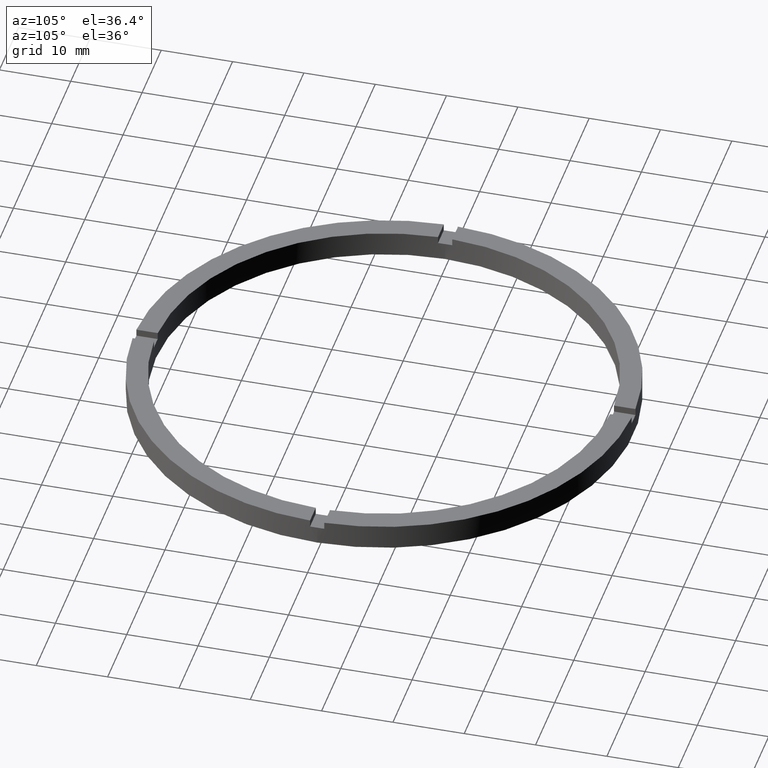
[diagram: clean part render]
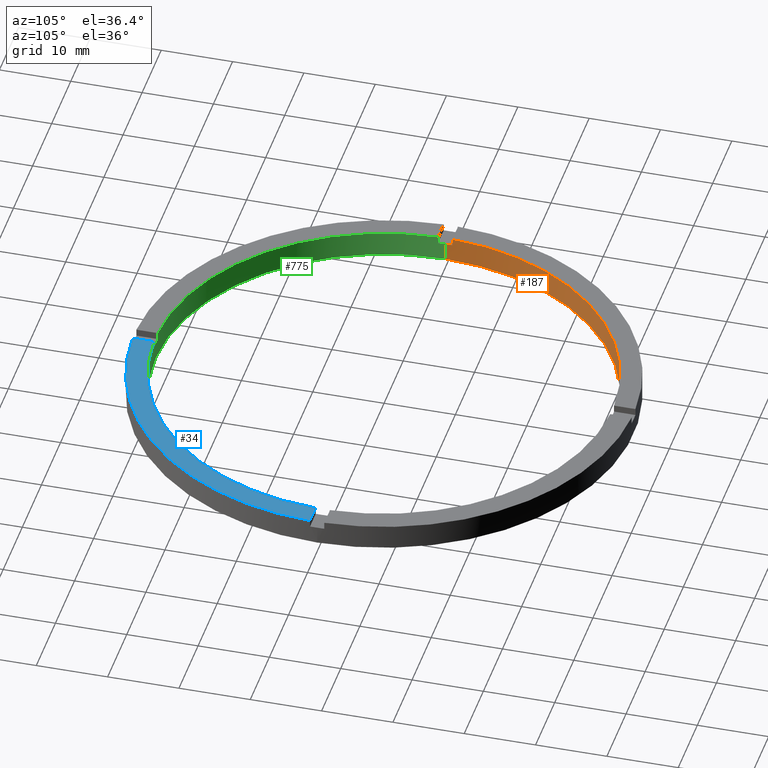
[diagram: same view with three faces highlighted in distinct colors, each labeled with its STEP entity id]
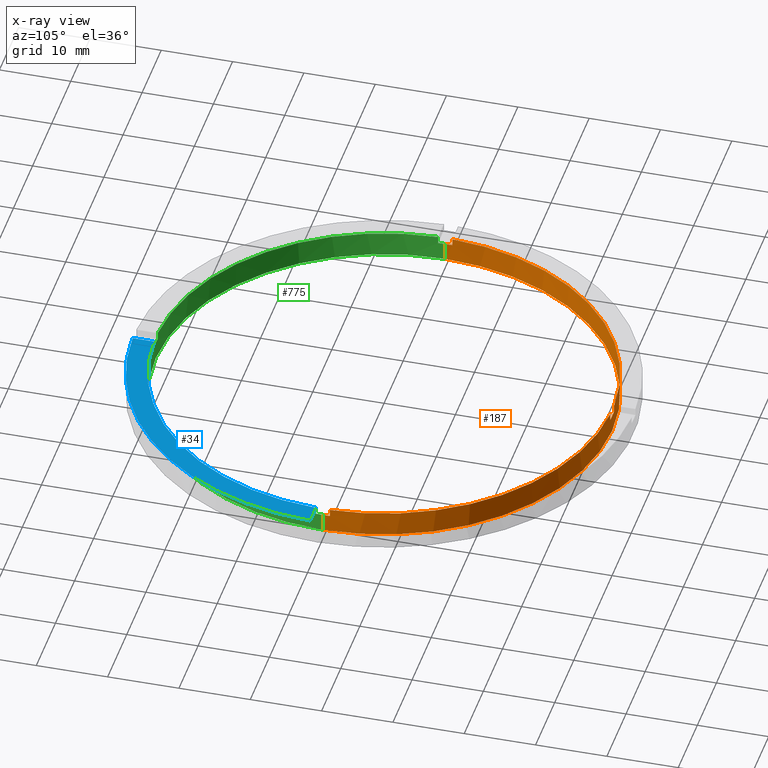
[diagram: x-ray of the same camera — body ghosted, the three highlighted faces saturated]
A machine part, auxiliary view with three faces highlighted in distinct colors.
The next image is the same camera in x-ray (body ghosted, the three faces saturated) — at least one of them is partly hidden behind the body in this view.
Their STEP definitions:

[orange] entity #187 — the highlighted cylindrical surface (partial cylindrical patch) has radius 32 mm, axis along (-0, -0, -1).
#3 = CARTESIAN_POINT ( 'NONE',  ( -1.000000000000024869, 31.98437118343894880, 3.500000000000000000 ) ) ;
#13 = CARTESIAN_POINT ( 'NONE',  ( 0.000000000000000000, 0.000000000000000000, 2.500000000000000000 ) ) ;
#14 = CARTESIAN_POINT ( 'NONE',  ( 0.000000000000000000, 0.000000000000000000, 3.500000000000000000 ) ) ;
#15 = EDGE_CURVE ( 'NONE', #658, #338, #350, .T. ) ;
#25 = DIRECTION ( 'NONE',  ( 0.000000000000000000, 0.000000000000000000, 1.000000000000000000 ) ) ;
#28 = CARTESIAN_POINT ( 'NONE',  ( 32.00000000000000000, 3.918869757271530263E-15, 3.500000000000000000 ) ) ;
#33 = EDGE_CURVE ( 'NONE', #624, #428, #355, .T. ) ;
#40 = CARTESIAN_POINT ( 'NONE',  ( -31.98437118343894880, 0.9999999999999737987, 3.500000000000000000 ) ) ;
#41 = DIRECTION ( 'NONE',  ( 0.000000000000000000, 0.000000000000000000, 1.000000000000000000 ) ) ;
#53 = AXIS2_PLACEMENT_3D ( 'NONE', #716, #25, #166 ) ;
#65 = VERTEX_POINT ( 'NONE', #288 ) ;
#70 = CARTESIAN_POINT ( 'NONE',  ( 0.000000000000000000, 0.000000000000000000, 3.500000000000000000 ) ) ;
#79 = ORIENTED_EDGE ( 'NONE', *, *, #252, .T. ) ;
#105 = VERTEX_POINT ( 'NONE', #290 ) ;
#106 = ORIENTED_EDGE ( 'NONE', *, *, #522, .F. ) ;
#119 = VERTEX_POINT ( 'NONE', #525 ) ;
#120 = ORIENTED_EDGE ( 'NONE', *, *, #212, .F. ) ;
#123 = ORIENTED_EDGE ( 'NONE', *, *, #568, .T. ) ;
#131 = VECTOR ( 'NONE', #267, 1000.000000000000000 ) ;
#153 = VERTEX_POINT ( 'NONE', #173 ) ;
#154 = DIRECTION ( 'NONE',  ( 1.000000000000000000, 0.000000000000000000, 0.000000000000000000 ) ) ;
#155 = ORIENTED_EDGE ( 'NONE', *, *, #33, .T. ) ;
#158 = CARTESIAN_POINT ( 'NONE',  ( -32.00000000000000000, 0.000000000000000000, 3.500000000000000000 ) ) ;
#166 = DIRECTION ( 'NONE',  ( 1.000000000000000000, 0.000000000000000000, 0.000000000000000000 ) ) ;
#173 = CARTESIAN_POINT ( 'NONE',  ( -32.00000000000000000, 0.000000000000000000, 2.500000000000000000 ) ) ;
#187 = ADVANCED_FACE ( 'NONE', ( #657 ), #647, .F. ) ;
#191 = CARTESIAN_POINT ( 'NONE',  ( 32.00000000000000000, 3.918869757271530263E-15, 0.000000000000000000 ) ) ;
#192 = VECTOR ( 'NONE', #302, 1000.000000000000000 ) ;
#193 = LINE ( 'NONE', #28, #192 ) ;
#200 = CARTESIAN_POINT ( 'NONE',  ( -31.98437118343894880, 0.9999999999999737987, 3.500000000000000000 ) ) ;
#204 = CIRCLE ( 'NONE', #552, 32.00000000000000000 ) ;
#212 = EDGE_CURVE ( 'NONE', #354, #428, #660, .T. ) ;
#214 = CARTESIAN_POINT ( 'NONE',  ( 0.9999999999999751310, 31.98437118343894880, 3.500000000000000000 ) ) ;
#243 = CARTESIAN_POINT ( 'NONE',  ( 0.9999999999999751310, 31.98437118343894880, 2.500000000000000000 ) ) ;
#249 = CARTESIAN_POINT ( 'NONE',  ( 32.00000000000000000, 3.918869757271530263E-15, 2.500000000000000000 ) ) ;
#252 = EDGE_CURVE ( 'NONE', #153, #338, #385, .T. ) ;
#259 = DIRECTION ( 'NONE',  ( 0.000000000000000000, 0.000000000000000000, 1.000000000000000000 ) ) ;
#267 = DIRECTION ( 'NONE',  ( -0.000000000000000000, -0.000000000000000000, -1.000000000000000000 ) ) ;
#268 = DIRECTION ( 'NONE',  ( 0.000000000000000000, 0.000000000000000000, 1.000000000000000000 ) ) ;
#284 = CARTESIAN_POINT ( 'NONE',  ( 0.000000000000000000, 0.000000000000000000, 2.500000000000000000 ) ) ;
#286 = EDGE_CURVE ( 'NONE', #624, #119, #303, .T. ) ;
#288 = CARTESIAN_POINT ( 'NONE',  ( 31.98437118343895591, 0.9999999999998421263, 3.500000000000000000 ) ) ;
#290 = CARTESIAN_POINT ( 'NONE',  ( -31.98437118343894880, 0.9999999999999737987, 2.500000000000000000 ) ) ;
#298 = CARTESIAN_POINT ( 'NONE',  ( 31.98437118343895591, 0.9999999999998421263, 2.500000000000000000 ) ) ;
#302 = DIRECTION ( 'NONE',  ( -0.000000000000000000, -0.000000000000000000, -1.000000000000000000 ) ) ;
#303 = LINE ( 'NONE', #214, #725 ) ;
#305 = EDGE_CURVE ( 'NONE', #105, #153, #466, .T. ) ;
#332 = VERTEX_POINT ( 'NONE', #40 ) ;
#337 = ORIENTED_EDGE ( 'NONE', *, *, #286, .F. ) ;
#338 = VERTEX_POINT ( 'NONE', #546 ) ;
#350 = CIRCLE ( 'NONE', #782, 32.00000000000000000 ) ;
#354 = VERTEX_POINT ( 'NONE', #3 ) ;
#355 = CIRCLE ( 'NONE', #426, 32.00000000000000000 ) ;
#359 = ORIENTED_EDGE ( 'NONE', *, *, #754, .F. ) ;
#379 = AXIS2_PLACEMENT_3D ( 'NONE', #70, #532, #523 ) ;
#385 = LINE ( 'NONE', #158, #131 ) ;
#421 = ORIENTED_EDGE ( 'NONE', *, *, #547, .T. ) ;
#426 = AXIS2_PLACEMENT_3D ( 'NONE', #13, #597, #700 ) ;
#428 = VERTEX_POINT ( 'NONE', #756 ) ;
#444 = EDGE_CURVE ( 'NONE', #690, #658, #193, .T. ) ;
#448 = CIRCLE ( 'NONE', #693, 32.00000000000000000 ) ;
#461 = DIRECTION ( 'NONE',  ( 0.000000000000000000, 0.000000000000000000, 1.000000000000000000 ) ) ;
#462 = LINE ( 'NONE', #776, #723 ) ;
#465 = DIRECTION ( 'NONE',  ( 1.000000000000000000, 0.000000000000000000, 0.000000000000000000 ) ) ;
#466 = CIRCLE ( 'NONE', #717, 32.00000000000000000 ) ;
#481 = VECTOR ( 'NONE', #41, 1000.000000000000000 ) ;
#508 = DIRECTION ( 'NONE',  ( 0.000000000000000000, 0.000000000000000000, 1.000000000000000000 ) ) ;
#511 = DIRECTION ( 'NONE',  ( 1.000000000000000000, 0.000000000000000000, 0.000000000000000000 ) ) ;
#518 = CARTESIAN_POINT ( 'NONE',  ( 0.000000000000000000, 0.000000000000000000, 3.500000000000000000 ) ) ;
#522 = EDGE_CURVE ( 'NONE', #65, #571, #462, .T. ) ;
#523 = DIRECTION ( 'NONE',  ( -1.000000000000000000, 0.000000000000000000, 0.000000000000000000 ) ) ;
#524 = DIRECTION ( 'NONE',  ( -0.000000000000000000, -0.000000000000000000, -1.000000000000000000 ) ) ;
#525 = CARTESIAN_POINT ( 'NONE',  ( 0.9999999999999751310, 31.98437118343894880, 3.500000000000000000 ) ) ;
#532 = DIRECTION ( 'NONE',  ( -0.000000000000000000, -0.000000000000000000, -1.000000000000000000 ) ) ;
#543 = EDGE_CURVE ( 'NONE', #690, #571, #704, .T. ) ;
#546 = CARTESIAN_POINT ( 'NONE',  ( -32.00000000000000000, 0.000000000000000000, 0.000000000000000000 ) ) ;
#547 = EDGE_CURVE ( 'NONE', #354, #332, #204, .T. ) ;
#550 = CARTESIAN_POINT ( 'NONE',  ( 0.000000000000000000, 0.000000000000000000, 0.000000000000000000 ) ) ;
#552 = AXIS2_PLACEMENT_3D ( 'NONE', #14, #461, #154 ) ;
#568 = EDGE_CURVE ( 'NONE', #65, #119, #448, .T. ) ;
#571 = VERTEX_POINT ( 'NONE', #298 ) ;
#588 = DIRECTION ( 'NONE',  ( 0.000000000000000000, 0.000000000000000000, 1.000000000000000000 ) ) ;
#590 = EDGE_LOOP ( 'NONE', ( #617, #607, #106, #123, #337, #155, #120, #421, #359, #670, #79, #600 ) ) ;
#597 = DIRECTION ( 'NONE',  ( 0.000000000000000000, -0.000000000000000000, 1.000000000000000000 ) ) ;
#600 = ORIENTED_EDGE ( 'NONE', *, *, #15, .F. ) ;
#606 = DIRECTION ( 'NONE',  ( -0.000000000000000000, -0.000000000000000000, -1.000000000000000000 ) ) ;
#607 = ORIENTED_EDGE ( 'NONE', *, *, #543, .T. ) ;
#617 = ORIENTED_EDGE ( 'NONE', *, *, #444, .F. ) ;
#624 = VERTEX_POINT ( 'NONE', #243 ) ;
#645 = CARTESIAN_POINT ( 'NONE',  ( -1.000000000000024869, 31.98437118343894880, 3.500000000000000000 ) ) ;
#647 = CYLINDRICAL_SURFACE ( 'NONE', #379, 32.00000000000000000 ) ;
#651 = VECTOR ( 'NONE', #606, 1000.000000000000000 ) ;
#657 = FACE_OUTER_BOUND ( 'NONE', #590, .T. ) ;
#658 = VERTEX_POINT ( 'NONE', #191 ) ;
#660 = LINE ( 'NONE', #645, #651 ) ;
#670 = ORIENTED_EDGE ( 'NONE', *, *, #305, .T. ) ;
#690 = VERTEX_POINT ( 'NONE', #249 ) ;
#693 = AXIS2_PLACEMENT_3D ( 'NONE', #518, #268, #763 ) ;
#700 = DIRECTION ( 'NONE',  ( 1.000000000000000000, 0.000000000000000000, 0.000000000000000000 ) ) ;
#704 = CIRCLE ( 'NONE', #53, 32.00000000000000000 ) ;
#716 = CARTESIAN_POINT ( 'NONE',  ( 0.000000000000000000, 0.000000000000000000, 2.500000000000000000 ) ) ;
#717 = AXIS2_PLACEMENT_3D ( 'NONE', #284, #508, #511 ) ;
#723 = VECTOR ( 'NONE', #524, 1000.000000000000000 ) ;
#725 = VECTOR ( 'NONE', #259, 1000.000000000000000 ) ;
#740 = LINE ( 'NONE', #200, #481 ) ;
#754 = EDGE_CURVE ( 'NONE', #105, #332, #740, .T. ) ;
#756 = CARTESIAN_POINT ( 'NONE',  ( -1.000000000000024869, 31.98437118343894880, 2.500000000000000000 ) ) ;
#763 = DIRECTION ( 'NONE',  ( 1.000000000000000000, 0.000000000000000000, 0.000000000000000000 ) ) ;
#776 = CARTESIAN_POINT ( 'NONE',  ( 31.98437118343895591, 0.9999999999998421263, 3.500000000000000000 ) ) ;
#782 = AXIS2_PLACEMENT_3D ( 'NONE', #550, #588, #465 ) ;

[blue] entity #34 — the highlighted planar face has unit normal (0, 0, 1).
#34 = ADVANCED_FACE ( 'NONE', ( #620 ), #766, .T. ) ;
#37 = DIRECTION ( 'NONE',  ( 1.000000000000000000, 0.000000000000000000, 0.000000000000000000 ) ) ;
#43 = CARTESIAN_POINT ( 'NONE',  ( 0.000000000000000000, 0.000000000000000000, 3.500000000000000000 ) ) ;
#89 = CARTESIAN_POINT ( 'NONE',  ( 0.9999999999998382405, -25.00000000000018829, 3.500000000000000000 ) ) ;
#99 = EDGE_LOOP ( 'NONE', ( #136, #395, #685, #689 ) ) ;
#100 = AXIS2_PLACEMENT_3D ( 'NONE', #535, #431, #37 ) ;
#103 = CARTESIAN_POINT ( 'NONE',  ( 31.98437118343894170, -1.000000000000157874, 3.500000000000000000 ) ) ;
#136 = ORIENTED_EDGE ( 'NONE', *, *, #596, .F. ) ;
#140 = CARTESIAN_POINT ( 'NONE',  ( 0.9999999999998391287, -31.98437118343895591, 3.500000000000000000 ) ) ;
#147 = DIRECTION ( 'NONE',  ( 1.000000000000000000, 0.000000000000000000, -0.000000000000000000 ) ) ;
#172 = VECTOR ( 'NONE', #504, 1000.000000000000000 ) ;
#175 = DIRECTION ( 'NONE',  ( -1.301042606982605074E-16, 1.000000000000000000, -0.000000000000000000 ) ) ;
#248 = DIRECTION ( 'NONE',  ( 0.000000000000000000, 0.000000000000000000, 1.000000000000000000 ) ) ;
#250 = AXIS2_PLACEMENT_3D ( 'NONE', #43, #248, #454 ) ;
#324 = EDGE_CURVE ( 'NONE', #344, #409, #721, .T. ) ;
#344 = VERTEX_POINT ( 'NONE', #140 ) ;
#360 = VERTEX_POINT ( 'NONE', #501 ) ;
#361 = CARTESIAN_POINT ( 'NONE',  ( 0.000000000000000000, 0.000000000000000000, 3.500000000000000000 ) ) ;
#384 = EDGE_CURVE ( 'NONE', #360, #422, #727, .T. ) ;
#395 = ORIENTED_EDGE ( 'NONE', *, *, #324, .F. ) ;
#409 = VERTEX_POINT ( 'NONE', #103 ) ;
#422 = VERTEX_POINT ( 'NONE', #572 ) ;
#431 = DIRECTION ( 'NONE',  ( 0.000000000000000000, 0.000000000000000000, 1.000000000000000000 ) ) ;
#433 = CARTESIAN_POINT ( 'NONE',  ( 25.00000000000000000, -1.000000000000158540, 3.500000000000000000 ) ) ;
#441 = LINE ( 'NONE', #433, #172 ) ;
#454 = DIRECTION ( 'NONE',  ( 1.000000000000000000, 0.000000000000000000, 0.000000000000000000 ) ) ;
#459 = DIRECTION ( 'NONE',  ( 0.000000000000000000, 0.000000000000000000, 1.000000000000000000 ) ) ;
#485 = LINE ( 'NONE', #89, #757 ) ;
#501 = CARTESIAN_POINT ( 'NONE',  ( 0.9999999999998395728, -34.98571136907181511, 3.500000000000000000 ) ) ;
#504 = DIRECTION ( 'NONE',  ( 1.000000000000000000, 6.505213034913025371E-17, 0.000000000000000000 ) ) ;
#535 = CARTESIAN_POINT ( 'NONE',  ( 0.000000000000000000, 0.000000000000000000, 3.500000000000000000 ) ) ;
#572 = CARTESIAN_POINT ( 'NONE',  ( 34.98571136907180090, -1.000000000000157874, 3.500000000000000000 ) ) ;
#596 = EDGE_CURVE ( 'NONE', #409, #422, #441, .T. ) ;
#612 = AXIS2_PLACEMENT_3D ( 'NONE', #361, #459, #147 ) ;
#620 = FACE_OUTER_BOUND ( 'NONE', #99, .T. ) ;
#685 = ORIENTED_EDGE ( 'NONE', *, *, #777, .F. ) ;
#689 = ORIENTED_EDGE ( 'NONE', *, *, #384, .T. ) ;
#721 = CIRCLE ( 'NONE', #250, 32.00000000000000000 ) ;
#727 = CIRCLE ( 'NONE', #100, 35.00000000000000711 ) ;
#757 = VECTOR ( 'NONE', #175, 1000.000000000000000 ) ;
#766 = PLANE ( 'NONE',  #612 ) ;
#777 = EDGE_CURVE ( 'NONE', #360, #344, #485, .T. ) ;

[green] entity #775 — the highlighted cylindrical surface (partial cylindrical patch) has radius 32 mm, axis along (-0, -0, -1).
#21 = EDGE_CURVE ( 'NONE', #344, #601, #122, .T. ) ;
#22 = DIRECTION ( 'NONE',  ( 0.000000000000000000, 0.000000000000000000, 1.000000000000000000 ) ) ;
#24 = DIRECTION ( 'NONE',  ( -0.000000000000000000, 0.000000000000000000, 1.000000000000000000 ) ) ;
#28 = CARTESIAN_POINT ( 'NONE',  ( 32.00000000000000000, 3.918869757271530263E-15, 3.500000000000000000 ) ) ;
#35 = CARTESIAN_POINT ( 'NONE',  ( -1.000000000000160982, -31.98437118343894170, 3.500000000000000000 ) ) ;
#43 = CARTESIAN_POINT ( 'NONE',  ( 0.000000000000000000, 0.000000000000000000, 3.500000000000000000 ) ) ;
#49 = EDGE_CURVE ( 'NONE', #153, #156, #364, .T. ) ;
#60 = DIRECTION ( 'NONE',  ( 0.000000000000000000, 0.000000000000000000, 1.000000000000000000 ) ) ;
#81 = EDGE_LOOP ( 'NONE', ( #683, #627, #336, #376, #688, #674, #634, #639, #371, #362, #383, #586 ) ) ;
#103 = CARTESIAN_POINT ( 'NONE',  ( 31.98437118343894170, -1.000000000000157874, 3.500000000000000000 ) ) ;
#112 = VERTEX_POINT ( 'NONE', #35 ) ;
#115 = DIRECTION ( 'NONE',  ( 0.000000000000000000, 0.000000000000000000, 1.000000000000000000 ) ) ;
#122 = LINE ( 'NONE', #515, #615 ) ;
#131 = VECTOR ( 'NONE', #267, 1000.000000000000000 ) ;
#140 = CARTESIAN_POINT ( 'NONE',  ( 0.9999999999998391287, -31.98437118343895591, 3.500000000000000000 ) ) ;
#153 = VERTEX_POINT ( 'NONE', #173 ) ;
#156 = VERTEX_POINT ( 'NONE', #492 ) ;
#158 = CARTESIAN_POINT ( 'NONE',  ( -32.00000000000000000, 0.000000000000000000, 3.500000000000000000 ) ) ;
#173 = CARTESIAN_POINT ( 'NONE',  ( -32.00000000000000000, 0.000000000000000000, 2.500000000000000000 ) ) ;
#176 = VECTOR ( 'NONE', #22, 1000.000000000000000 ) ;
#183 = AXIS2_PLACEMENT_3D ( 'NONE', #442, #115, #278 ) ;
#184 = EDGE_CURVE ( 'NONE', #315, #601, #396, .T. ) ;
#191 = CARTESIAN_POINT ( 'NONE',  ( 32.00000000000000000, 3.918869757271530263E-15, 0.000000000000000000 ) ) ;
#192 = VECTOR ( 'NONE', #302, 1000.000000000000000 ) ;
#193 = LINE ( 'NONE', #28, #192 ) ;
#196 = CARTESIAN_POINT ( 'NONE',  ( 31.98437118343894170, -1.000000000000157874, 2.500000000000000000 ) ) ;
#211 = VECTOR ( 'NONE', #650, 1000.000000000000000 ) ;
#216 = CYLINDRICAL_SURFACE ( 'NONE', #519, 32.00000000000000000 ) ;
#233 = DIRECTION ( 'NONE',  ( 1.000000000000000000, 0.000000000000000000, 0.000000000000000000 ) ) ;
#245 = CARTESIAN_POINT ( 'NONE',  ( 0.000000000000000000, 0.000000000000000000, 2.500000000000000000 ) ) ;
#247 = CARTESIAN_POINT ( 'NONE',  ( -31.98437118343894880, -1.000000000000026201, 3.500000000000000000 ) ) ;
#248 = DIRECTION ( 'NONE',  ( 0.000000000000000000, 0.000000000000000000, 1.000000000000000000 ) ) ;
#249 = CARTESIAN_POINT ( 'NONE',  ( 32.00000000000000000, 3.918869757271530263E-15, 2.500000000000000000 ) ) ;
#250 = AXIS2_PLACEMENT_3D ( 'NONE', #43, #248, #454 ) ;
#252 = EDGE_CURVE ( 'NONE', #153, #338, #385, .T. ) ;
#254 = DIRECTION ( 'NONE',  ( 1.000000000000000000, 0.000000000000000000, 0.000000000000000000 ) ) ;
#267 = DIRECTION ( 'NONE',  ( -0.000000000000000000, -0.000000000000000000, -1.000000000000000000 ) ) ;
#278 = DIRECTION ( 'NONE',  ( 1.000000000000000000, 0.000000000000000000, 0.000000000000000000 ) ) ;
#282 = CARTESIAN_POINT ( 'NONE',  ( 0.000000000000000000, 0.000000000000000000, 0.000000000000000000 ) ) ;
#294 = DIRECTION ( 'NONE',  ( -0.000000000000000000, -0.000000000000000000, -1.000000000000000000 ) ) ;
#302 = DIRECTION ( 'NONE',  ( -0.000000000000000000, -0.000000000000000000, -1.000000000000000000 ) ) ;
#313 = CARTESIAN_POINT ( 'NONE',  ( 0.000000000000000000, 0.000000000000000000, 3.500000000000000000 ) ) ;
#315 = VERTEX_POINT ( 'NONE', #537 ) ;
#322 = AXIS2_PLACEMENT_3D ( 'NONE', #245, #24, #380 ) ;
#324 = EDGE_CURVE ( 'NONE', #344, #409, #721, .T. ) ;
#336 = ORIENTED_EDGE ( 'NONE', *, *, #415, .F. ) ;
#338 = VERTEX_POINT ( 'NONE', #546 ) ;
#344 = VERTEX_POINT ( 'NONE', #140 ) ;
#362 = ORIENTED_EDGE ( 'NONE', *, *, #21, .F. ) ;
#364 = CIRCLE ( 'NONE', #487, 32.00000000000000000 ) ;
#366 = VERTEX_POINT ( 'NONE', #196 ) ;
#371 = ORIENTED_EDGE ( 'NONE', *, *, #184, .T. ) ;
#373 = CARTESIAN_POINT ( 'NONE',  ( 0.000000000000000000, 0.000000000000000000, 2.500000000000000000 ) ) ;
#376 = ORIENTED_EDGE ( 'NONE', *, *, #252, .F. ) ;
#380 = DIRECTION ( 'NONE',  ( 1.000000000000000000, 0.000000000000000000, 0.000000000000000000 ) ) ;
#383 = ORIENTED_EDGE ( 'NONE', *, *, #324, .T. ) ;
#385 = LINE ( 'NONE', #158, #131 ) ;
#396 = CIRCLE ( 'NONE', #322, 32.00000000000000000 ) ;
#405 = CARTESIAN_POINT ( 'NONE',  ( -31.98437118343894880, -1.000000000000026201, 3.500000000000000000 ) ) ;
#409 = VERTEX_POINT ( 'NONE', #103 ) ;
#412 = DIRECTION ( 'NONE',  ( -1.000000000000000000, 0.000000000000000000, 0.000000000000000000 ) ) ;
#415 = EDGE_CURVE ( 'NONE', #338, #658, #464, .T. ) ;
#425 = CARTESIAN_POINT ( 'NONE',  ( 0.9999999999998391287, -31.98437118343895591, 2.500000000000000000 ) ) ;
#436 = DIRECTION ( 'NONE',  ( 0.000000000000000000, 0.000000000000000000, 1.000000000000000000 ) ) ;
#440 = AXIS2_PLACEMENT_3D ( 'NONE', #282, #503, #254 ) ;
#442 = CARTESIAN_POINT ( 'NONE',  ( 0.000000000000000000, 0.000000000000000000, 3.500000000000000000 ) ) ;
#443 = VECTOR ( 'NONE', #494, 1000.000000000000000 ) ;
#444 = EDGE_CURVE ( 'NONE', #690, #658, #193, .T. ) ;
#454 = DIRECTION ( 'NONE',  ( 1.000000000000000000, 0.000000000000000000, 0.000000000000000000 ) ) ;
#460 = CIRCLE ( 'NONE', #183, 32.00000000000000000 ) ;
#464 = CIRCLE ( 'NONE', #440, 32.00000000000000000 ) ;
#477 = FACE_OUTER_BOUND ( 'NONE', #81, .T. ) ;
#487 = AXIS2_PLACEMENT_3D ( 'NONE', #540, #436, #507 ) ;
#492 = CARTESIAN_POINT ( 'NONE',  ( -31.98437118343894880, -1.000000000000026201, 2.500000000000000000 ) ) ;
#494 = DIRECTION ( 'NONE',  ( -0.000000000000000000, -0.000000000000000000, -1.000000000000000000 ) ) ;
#496 = AXIS2_PLACEMENT_3D ( 'NONE', #373, #60, #233 ) ;
#503 = DIRECTION ( 'NONE',  ( 0.000000000000000000, 0.000000000000000000, 1.000000000000000000 ) ) ;
#506 = EDGE_CURVE ( 'NONE', #649, #156, #701, .T. ) ;
#507 = DIRECTION ( 'NONE',  ( 1.000000000000000000, 0.000000000000000000, 0.000000000000000000 ) ) ;
#515 = CARTESIAN_POINT ( 'NONE',  ( 0.9999999999998391287, -31.98437118343895591, 3.500000000000000000 ) ) ;
#519 = AXIS2_PLACEMENT_3D ( 'NONE', #313, #564, #412 ) ;
#537 = CARTESIAN_POINT ( 'NONE',  ( -1.000000000000160982, -31.98437118343894170, 2.500000000000000000 ) ) ;
#540 = CARTESIAN_POINT ( 'NONE',  ( 0.000000000000000000, 0.000000000000000000, 2.500000000000000000 ) ) ;
#546 = CARTESIAN_POINT ( 'NONE',  ( -32.00000000000000000, 0.000000000000000000, 0.000000000000000000 ) ) ;
#554 = EDGE_CURVE ( 'NONE', #315, #112, #734, .T. ) ;
#564 = DIRECTION ( 'NONE',  ( -0.000000000000000000, -0.000000000000000000, -1.000000000000000000 ) ) ;
#578 = EDGE_CURVE ( 'NONE', #366, #690, #699, .T. ) ;
#586 = ORIENTED_EDGE ( 'NONE', *, *, #735, .F. ) ;
#601 = VERTEX_POINT ( 'NONE', #425 ) ;
#610 = CARTESIAN_POINT ( 'NONE',  ( -1.000000000000160982, -31.98437118343894170, 3.500000000000000000 ) ) ;
#615 = VECTOR ( 'NONE', #294, 1000.000000000000000 ) ;
#627 = ORIENTED_EDGE ( 'NONE', *, *, #444, .T. ) ;
#634 = ORIENTED_EDGE ( 'NONE', *, *, #705, .T. ) ;
#639 = ORIENTED_EDGE ( 'NONE', *, *, #554, .F. ) ;
#649 = VERTEX_POINT ( 'NONE', #247 ) ;
#650 = DIRECTION ( 'NONE',  ( 0.000000000000000000, 0.000000000000000000, 1.000000000000000000 ) ) ;
#658 = VERTEX_POINT ( 'NONE', #191 ) ;
#674 = ORIENTED_EDGE ( 'NONE', *, *, #506, .F. ) ;
#683 = ORIENTED_EDGE ( 'NONE', *, *, #578, .T. ) ;
#688 = ORIENTED_EDGE ( 'NONE', *, *, #49, .T. ) ;
#690 = VERTEX_POINT ( 'NONE', #249 ) ;
#699 = CIRCLE ( 'NONE', #496, 32.00000000000000000 ) ;
#701 = LINE ( 'NONE', #405, #443 ) ;
#705 = EDGE_CURVE ( 'NONE', #649, #112, #460, .T. ) ;
#721 = CIRCLE ( 'NONE', #250, 32.00000000000000000 ) ;
#734 = LINE ( 'NONE', #610, #176 ) ;
#735 = EDGE_CURVE ( 'NONE', #366, #409, #742, .T. ) ;
#742 = LINE ( 'NONE', #781, #211 ) ;
#775 = ADVANCED_FACE ( 'NONE', ( #477 ), #216, .F. ) ;
#781 = CARTESIAN_POINT ( 'NONE',  ( 31.98437118343894170, -1.000000000000157874, 3.500000000000000000 ) ) ;